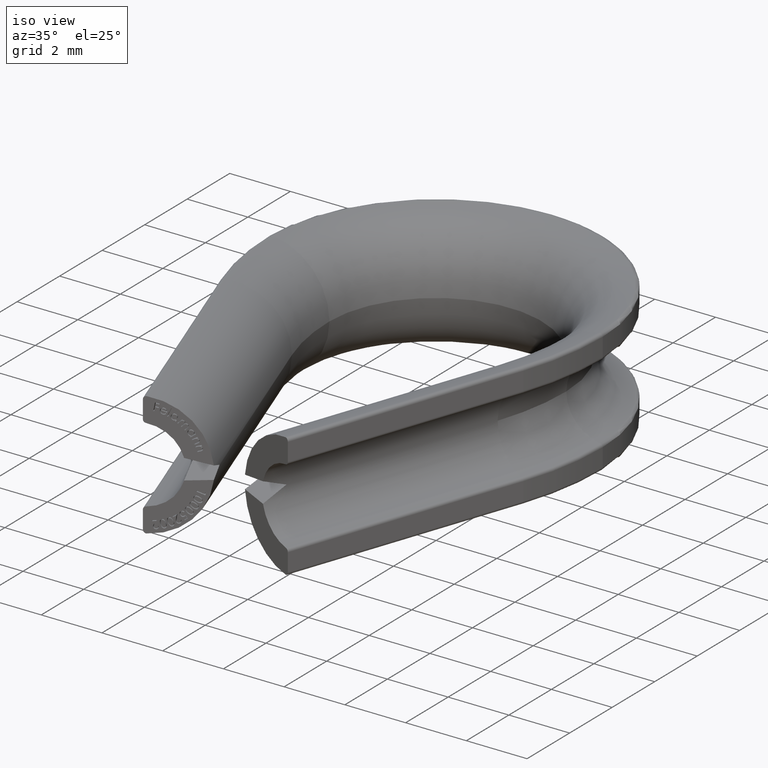
[diagram: clean part render]
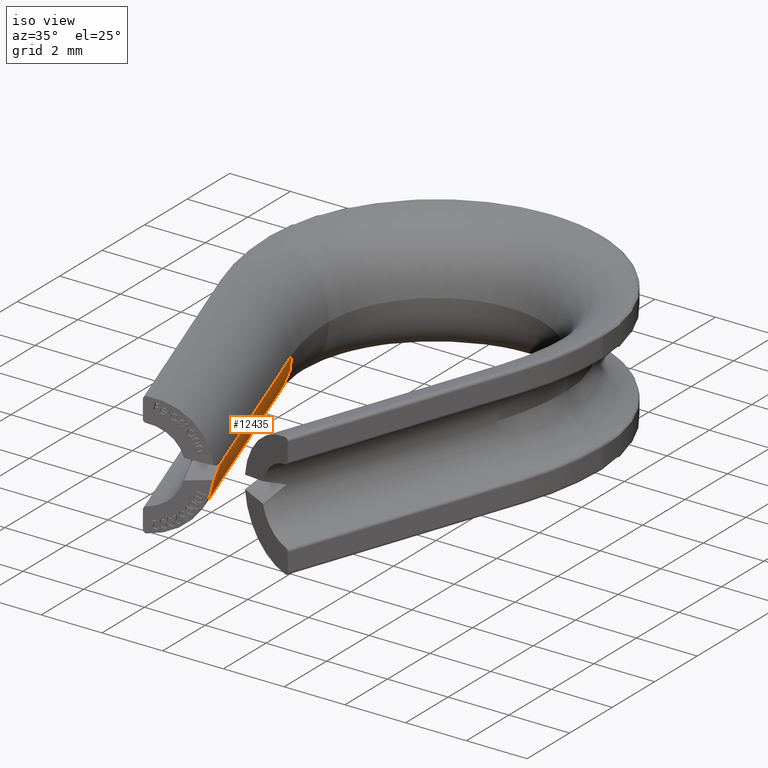
[diagram: same view with one face highlighted and labeled with its STEP entity id]
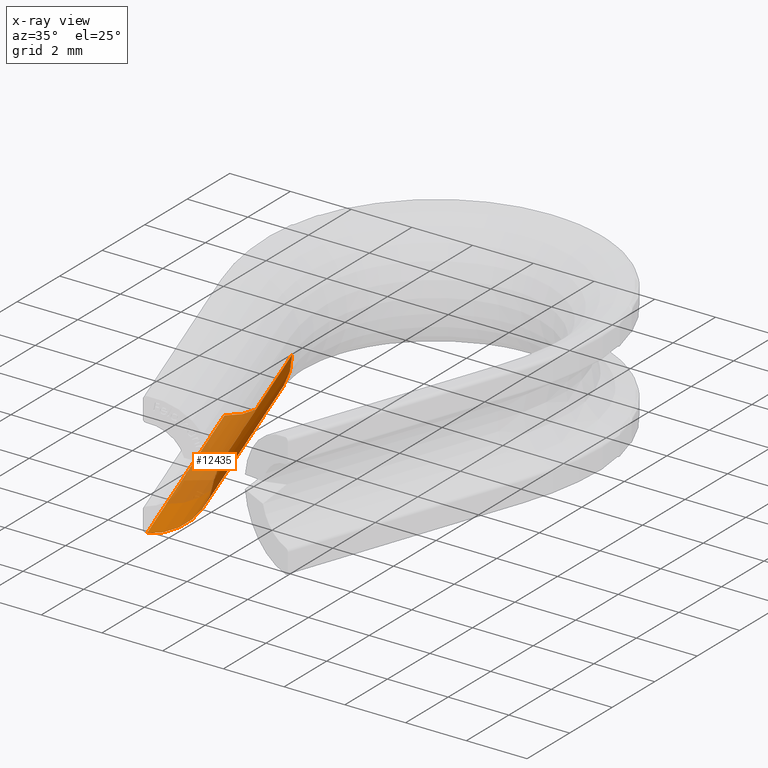
[diagram: x-ray of the same camera — body ghosted, the highlighted face saturated]
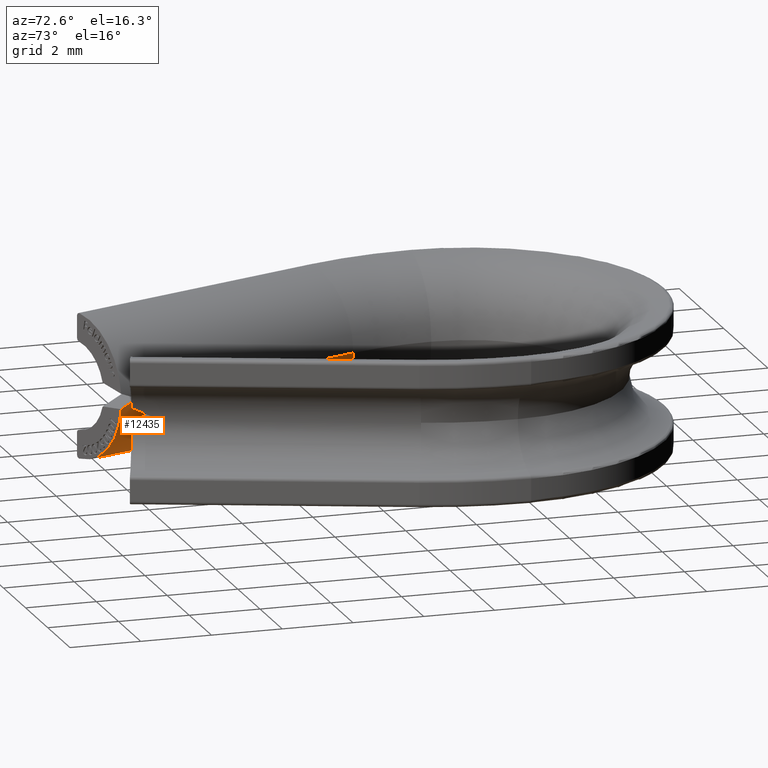
[diagram: same view with one face highlighted and labeled with its STEP entity id]
A machine part, iso view. The second image highlights one B-rep face of the part: STEP entity #12435.
The next image is the same camera in x-ray: the body ghosted, the highlighted face saturated — about 51% of this face is hidden behind the body in this view.
A second angle (auxiliary view) of the same face is appended — the face is thin or edge-on in the first view.
In plain terms, the highlighted cylindrical surface (partial cylindrical patch) has radius 2.05 mm, axis along (0.3328, -0.943, 0).
Its self-contained STEP definition (entity closure, byte-faithful):
#535 = AXIS2_PLACEMENT_3D ( 'NONE', #13809, #3571, #7066 ) ;
#641 = EDGE_CURVE ( 'NONE', #14030, #9796, #11702, .T. ) ;
#979 = EDGE_CURVE ( 'NONE', #8441, #14030, #4759, .T. ) ;
#1185 = DIRECTION ( 'NONE',  ( -0.3327819343494358200, 0.9430038092026181700, 0.0000000000000000000 ) ) ;
#1240 = CARTESIAN_POINT ( 'NONE',  ( -5.034184473283693800, 6.688323494137608600, 0.0000000000000000000 ) ) ;
#1350 = ORIENTED_EDGE ( 'NONE', *, *, #979, .T. ) ;
#1741 = AXIS2_PLACEMENT_3D ( 'NONE', #1240, #1185, #7176 ) ;
#1846 = CARTESIAN_POINT ( 'NONE',  ( -2.284453362029572600, -0.6297258142304705800, -2.043925912574787100 ) ) ;
#3437 = DIRECTION ( 'NONE',  ( 0.0000000000000000000, 0.0000000000000000000, -1.000000000000000000 ) ) ;
#3571 = DIRECTION ( 'NONE',  ( 0.3327819343494358200, -0.9430038092026182800, 0.0000000000000000000 ) ) ;
#3819 = CARTESIAN_POINT ( 'NONE',  ( -0.6170467380103401600, 0.3316752155259520800, -0.07220744782606766700 ) ) ;
#4211 = CIRCLE ( 'NONE', #1741, 2.050000000000000300 ) ;
#4333 = LINE ( 'NONE', #6556, #14789 ) ;
#4690 = DIRECTION ( 'NONE',  ( -0.3327819343494358200, 0.9430038092026181700, 0.0000000000000000000 ) ) ;
#4759 = LINE ( 'NONE', #14641, #10676 ) ;
#6135 = CARTESIAN_POINT ( 'NONE',  ( -0.6764478208369220100, 0.4999999999999987200, 4.814824860968089600E-032 ) ) ;
#6556 = CARTESIAN_POINT ( 'NONE',  ( -4.885480026447899200, 6.740800645323480100, -2.043925912574786600 ) ) ;
#6673 = EDGE_LOOP ( 'NONE', ( #8387, #1350, #14987, #10784, #12883 ) ) ;
#6732 = CARTESIAN_POINT ( 'NONE',  ( -3.101026664418326600, 7.370526459553953000, 0.0000000000000000000 ) ) ;
#7066 = DIRECTION ( 'NONE',  ( 0.9430038092026180600, 0.3327819343494359800, 0.0000000000000000000 ) ) ;
#7105 = CIRCLE ( 'NONE', #15242, 2.050000000000000300 ) ;
#7176 = DIRECTION ( 'NONE',  ( 0.0000000000000000000, 0.0000000000000000000, -1.000000000000000000 ) ) ;
#7306 = CARTESIAN_POINT ( 'NONE',  ( -0.5107727958387363600, -0.003801672700130950500, -0.2161192905123801300 ) ) ;
#7415 = CARTESIAN_POINT ( 'NONE',  ( -0.5617703546191834500, 0.1635850980590410300, -0.1443142289218782600 ) ) ;
#7932 = EDGE_CURVE ( 'NONE', #8419, #9382, #4333, .T. ) ;
#8387 = ORIENTED_EDGE ( 'NONE', *, *, #14324, .F. ) ;
#8419 = VERTEX_POINT ( 'NONE', #1846 ) ;
#8441 = VERTEX_POINT ( 'NONE', #6732 ) ;
#9380 = CYLINDRICAL_SURFACE ( 'NONE', #535, 2.050000000000000700 ) ;
#9382 = VERTEX_POINT ( 'NONE', #9478 ) ;
#9478 = CARTESIAN_POINT ( 'NONE',  ( -4.885480026450629500, 6.740800645322515500, -2.043925912575236500 ) ) ;
#9527 = CARTESIAN_POINT ( 'NONE',  ( -2.433157808865367100, -0.6822029654163421800, 0.0000000000000000000 ) ) ;
#9796 = VERTEX_POINT ( 'NONE', #10337 ) ;
#10337 = CARTESIAN_POINT ( 'NONE',  ( -0.5107727958387363600, -0.003801672700130950500, -0.2161192905123801300 ) ) ;
#10420 = FACE_OUTER_BOUND ( 'NONE', #6673, .T. ) ;
#10676 = VECTOR ( 'NONE', #11186, 1000.000000000000200 ) ;
#10784 = ORIENTED_EDGE ( 'NONE', *, *, #12005, .T. ) ;
#11186 = DIRECTION ( 'NONE',  ( 0.3327819343494357000, -0.9430038092026180600, 0.0000000000000000000 ) ) ;
#11702 =( BOUNDED_CURVE ( )  B_SPLINE_CURVE ( 3, ( #6135, #3819, #7415, #7306 ),
 .UNSPECIFIED., .F., .F. ) 
 B_SPLINE_CURVE_WITH_KNOTS ( ( 4, 4 ),
 ( 4.854186687855037300, 4.959806999710927800 ),
 .UNSPECIFIED. ) 
 CURVE ( )  GEOMETRIC_REPRESENTATION_ITEM ( )  RATIONAL_B_SPLINE_CURVE ( ( 1.000000000000000000, 0.9990705785133520100, 0.9990705785133520100, 1.000000000000000000 ) ) 
 REPRESENTATION_ITEM ( '' )  );
#12005 = EDGE_CURVE ( 'NONE', #9796, #8419, #7105, .T. ) ;
#12435 = ADVANCED_FACE ( 'NONE', ( #10420 ), #9380, .T. ) ;
#12883 = ORIENTED_EDGE ( 'NONE', *, *, #7932, .T. ) ;
#13809 = CARTESIAN_POINT ( 'NONE',  ( -5.034184473283693800, 6.688323494137608600, 0.0000000000000000000 ) ) ;
#14030 = VERTEX_POINT ( 'NONE', #14622 ) ;
#14324 = EDGE_CURVE ( 'NONE', #8441, #9382, #4211, .T. ) ;
#14622 = CARTESIAN_POINT ( 'NONE',  ( -0.6764478208369220100, 0.4999999999999987200, 4.814824860968089600E-032 ) ) ;
#14641 = CARTESIAN_POINT ( 'NONE',  ( -3.101026664418326600, 7.370526459553953000, 0.0000000000000000000 ) ) ;
#14780 = DIRECTION ( 'NONE',  ( -0.3327819343494357000, 0.9430038092026180600, -0.0000000000000000000 ) ) ;
#14789 = VECTOR ( 'NONE', #14780, 1000.000000000000200 ) ;
#14987 = ORIENTED_EDGE ( 'NONE', *, *, #641, .T. ) ;
#15242 = AXIS2_PLACEMENT_3D ( 'NONE', #9527, #4690, #3437 ) ;